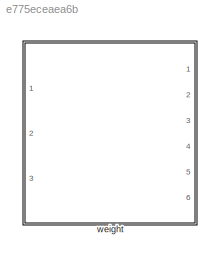
MODEL slx_e775eceaea6b
KIND library
CONFIG AbsTol = auto
CONFIG EnableMultiTasking = off
CONFIG FixedStep = auto
CONFIG MaxStep = auto
CONFIG MinStep = auto
CONFIG RelTol = 1e-3
CONFIG SampleTimeConstraint = Unconstrained
CONFIG SolverName = VariableStepAuto
CONFIG StartTime = 0.0
CONFIG StopTime = 10.0
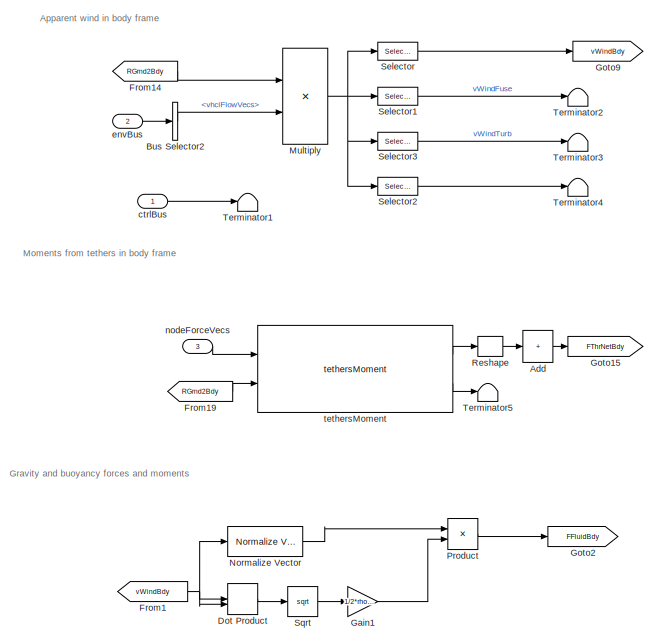
[diagram: weight - part 1/6, top center region]
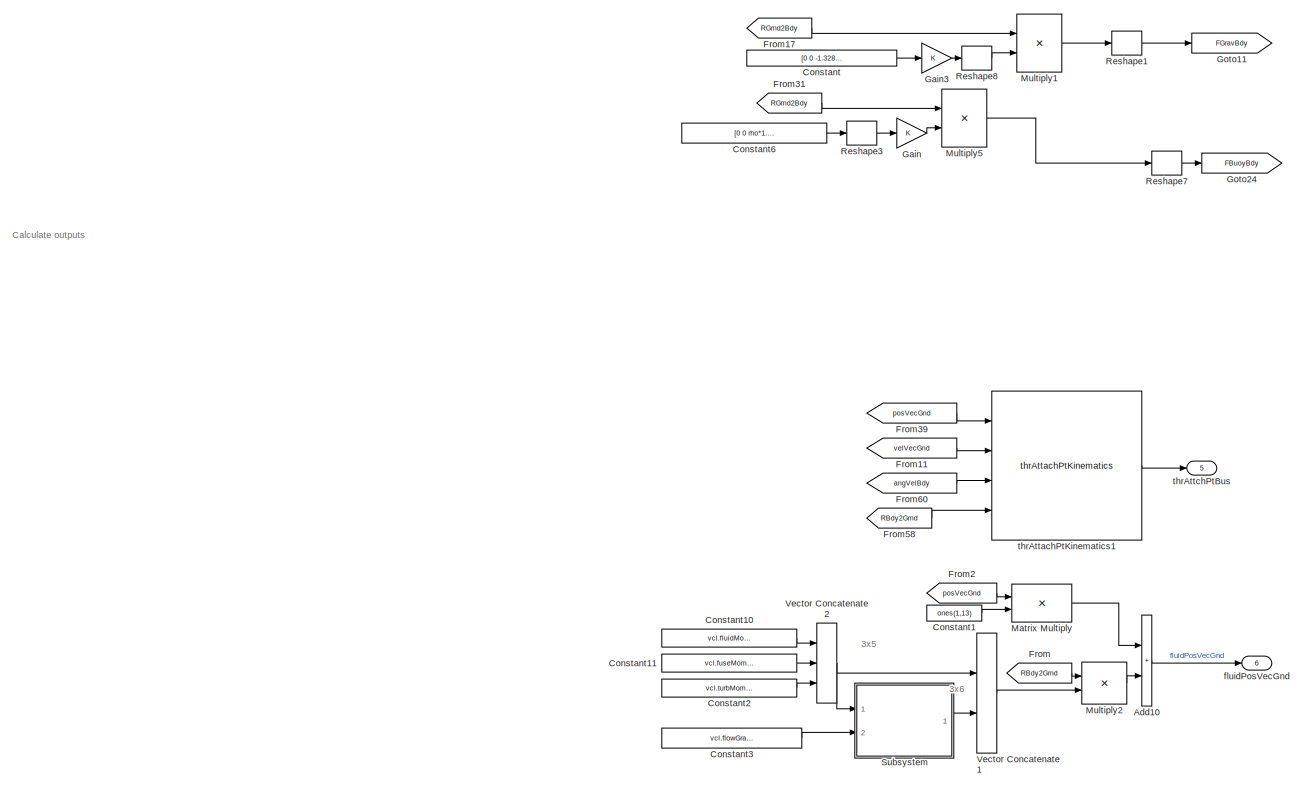
[diagram: weight - part 2/6, middle left region]
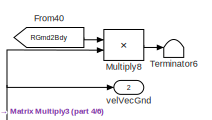
[diagram: weight - part 3/6, middle right region]
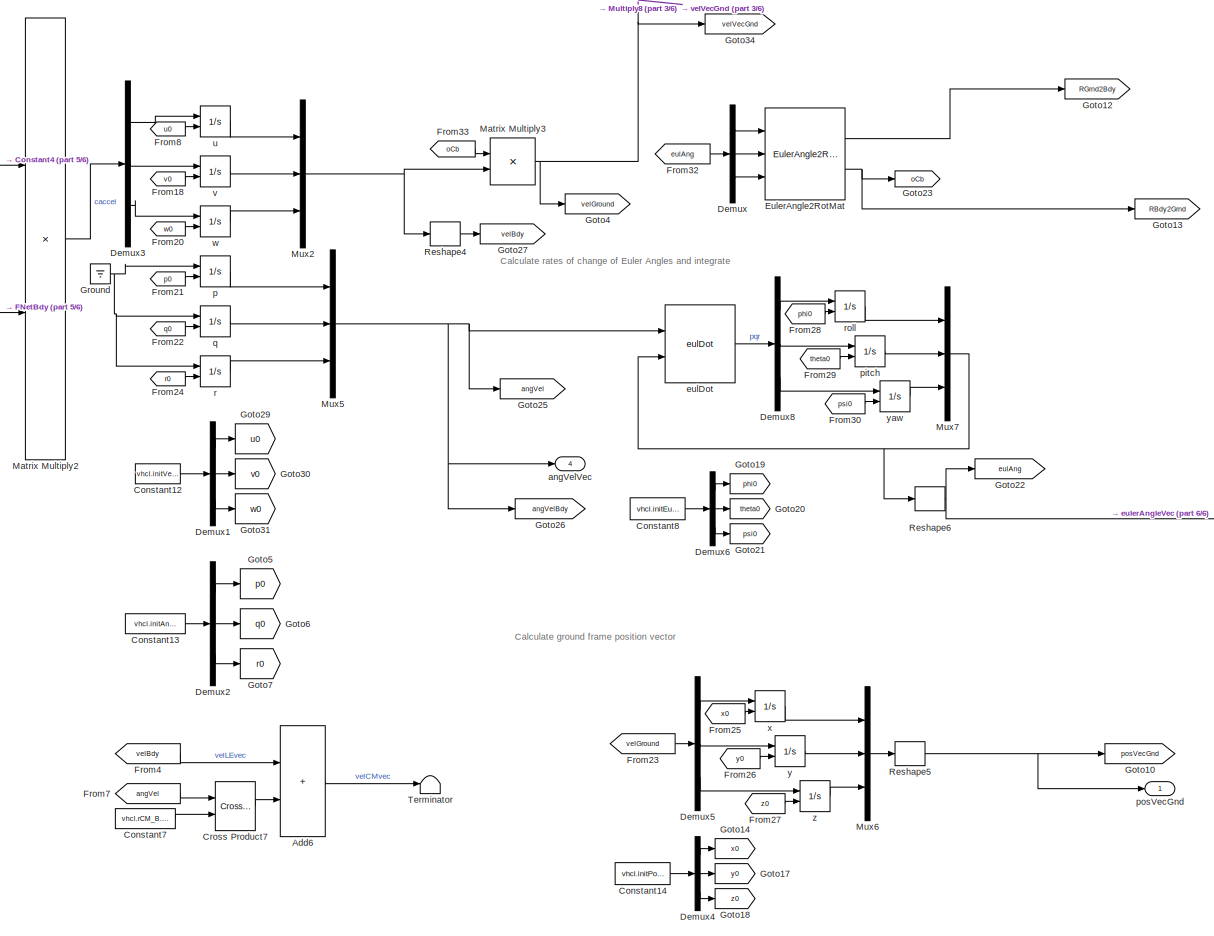
[diagram: weight - part 4/6, bottom right region]
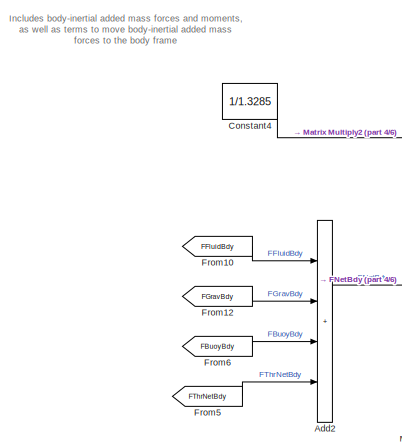
[diagram: weight - part 5/6, bottom center region]
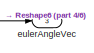
[diagram: weight - part 6/6, bottom right region]
BLOCK [SubSystem] weight
  Ports = [3, 6]
  RequestExecContextInheritance = off
  VariantControl = strcmpi(VEHICLE,'vehicleManta2Rot')
BLOCK [Sum] weight/Add
  CollapseDim = 2
  CollapseMode = Specified dimension
  IconShape = rectangular
  Inputs = +
  Ports = [1, 1]
BLOCK [Sum] weight/Add10
  IconShape = rectangular
  Ports = [2, 1]
BLOCK [Sum] weight/Add2
  IconShape = rectangular
  Inputs = ++++
  Ports = [4, 1]
BLOCK [Sum] weight/Add6
  IconShape = rectangular
  Ports = [2, 1]
BLOCK [BusSelector] weight/Bus Selector2
  OutputSignals = vhclFlowVecs
  Ports = [1, 1]
BLOCK [Constant] weight/Constant
  Value = [0 0 -1.3285*grav]
BLOCK [Constant] weight/Constant1
  Value = ones(1,13)
  VectorParams1D = off
BLOCK [Constant] weight/Constant10
  Value = vcl.fluidMomentArms.Value
BLOCK [Constant] weight/Constant11
  Value = vcl.fuseMomentArm.Value
BLOCK [Constant] weight/Constant12
  Value = vhcl.initVelVecBdy.Value
BLOCK [Constant] weight/Constant13
  Value = vhcl.initAngVelVec.Value
BLOCK [Constant] weight/Constant14
  Value = vhcl.initPosVecGnd.Value
BLOCK [Constant] weight/Constant2
  Value = vcl.turbMomentArms.Value
BLOCK [Constant] weight/Constant3
  Value = vcl.flowGradientDist.Value
BLOCK [Constant] weight/Constant4
  Value = 1/1.3285
  VectorParams1D = off
BLOCK [Constant] weight/Constant6
  Value = [0 0 rho*1.6924e-04*grav]'
BLOCK [Constant] weight/Constant7
  Value = vhcl.rCM_B.Value
BLOCK [Constant] weight/Constant8
  Value = vhcl.initEulAng.Value
BLOCK [Reference] weight/Cross Product7  REF=vrlib/Utilities/Cross Product
  Ports = [2, 1]
  SourceBlock = vrlib/Utilities/Cross Product
  SourceProductBaseCode = SL
  SourceType = Cross Product
BLOCK [Demux] weight/Demux
  Outputs = 3
  Ports = [1, 3]
BLOCK [Demux] weight/Demux1
  Outputs = 3
  Ports = [1, 3]
BLOCK [Demux] weight/Demux2
  Outputs = 3
  Ports = [1, 3]
BLOCK [Demux] weight/Demux3
  Outputs = 3
  Ports = [1, 3]
BLOCK [Demux] weight/Demux4
  Outputs = 3
  Ports = [1, 3]
BLOCK [Demux] weight/Demux5
  Outputs = 3
  Ports = [1, 3]
BLOCK [Demux] weight/Demux6
  Outputs = 3
  Ports = [1, 3]
BLOCK [Demux] weight/Demux8
  Outputs = 3
  Ports = [1, 3]
BLOCK [DotProduct] weight/Dot Product
  OutDataTypeStr = Inherit: Inherit via internal rule
BLOCK [Reference] weight/EulerAngle2RotMat  REF=eulAng2RotMat_ul/EulerAngle2RotMat
  Ports = [3, 2]
  SourceBlock = eulAng2RotMat_ul/EulerAngle2RotMat
  SourceType = SubSystem
BLOCK [From] weight/From
  GotoTag = RBdy2Grnd
BLOCK [From] weight/From1
  GotoTag = vWindBdy
BLOCK [From] weight/From10
  GotoTag = FFluidBdy
BLOCK [From] weight/From11
  GotoTag = velVecGnd
BLOCK [From] weight/From12
  GotoTag = FGravBdy
BLOCK [From] weight/From14
  GotoTag = RGrnd2Bdy
BLOCK [From] weight/From17
  GotoTag = RGrnd2Bdy
BLOCK [From] weight/From18
  GotoTag = v0
BLOCK [From] weight/From19
  GotoTag = RGrnd2Bdy
BLOCK [From] weight/From2
  GotoTag = posVecGnd
BLOCK [From] weight/From20
  GotoTag = w0
BLOCK [From] weight/From21
  GotoTag = p0
BLOCK [From] weight/From22
  GotoTag = q0
BLOCK [From] weight/From23
  GotoTag = velGround
BLOCK [From] weight/From24
  GotoTag = r0
BLOCK [From] weight/From25
  GotoTag = x0
BLOCK [From] weight/From26
  GotoTag = y0
BLOCK [From] weight/From27
  GotoTag = z0
BLOCK [From] weight/From28
  GotoTag = phi0
BLOCK [From] weight/From29
  GotoTag = theta0
BLOCK [From] weight/From30
  GotoTag = psi0
BLOCK [From] weight/From31
  GotoTag = RGrnd2Bdy
BLOCK [From] weight/From32
  GotoTag = eulAng
BLOCK [From] weight/From33
  GotoTag = oCb
BLOCK [From] weight/From39
  GotoTag = posVecGnd
BLOCK [From] weight/From4
  GotoTag = velBdy
BLOCK [From] weight/From40
  GotoTag = RGrnd2Bdy
BLOCK [From] weight/From5
  GotoTag = FThrNetBdy
BLOCK [From] weight/From58
  GotoTag = RBdy2Grnd
BLOCK [From] weight/From6
  GotoTag = FBuoyBdy
BLOCK [From] weight/From60
  GotoTag = angVelBdy
BLOCK [From] weight/From7
  GotoTag = angVel
BLOCK [From] weight/From8
  GotoTag = u0
BLOCK [Gain] weight/Gain
BLOCK [Gain] weight/Gain1
  Gain = 1/2*rho*0.0057*1
BLOCK [Gain] weight/Gain3
BLOCK [Goto] weight/Goto10
  GotoTag = posVecGnd
BLOCK [Goto] weight/Goto11
  GotoTag = FGravBdy
BLOCK [Goto] weight/Goto12
  GotoTag = RGrnd2Bdy
BLOCK [Goto] weight/Goto13
  GotoTag = RBdy2Grnd
BLOCK [Goto] weight/Goto14
  GotoTag = x0
BLOCK [Goto] weight/Goto15
  GotoTag = FThrNetBdy
BLOCK [Goto] weight/Goto17
  GotoTag = y0
BLOCK [Goto] weight/Goto18
  GotoTag = z0
BLOCK [Goto] weight/Goto19
  GotoTag = phi0
BLOCK [Goto] weight/Goto2
  GotoTag = FFluidBdy
BLOCK [Goto] weight/Goto20
  GotoTag = theta0
BLOCK [Goto] weight/Goto21
  GotoTag = psi0
BLOCK [Goto] weight/Goto22
  GotoTag = eulAng
BLOCK [Goto] weight/Goto23
  GotoTag = oCb
BLOCK [Goto] weight/Goto24
  GotoTag = FBuoyBdy
BLOCK [Goto] weight/Goto25
  GotoTag = angVel
BLOCK [Goto] weight/Goto26
  GotoTag = angVelBdy
BLOCK [Goto] weight/Goto27
  GotoTag = velBdy
BLOCK [Goto] weight/Goto29
  GotoTag = u0
BLOCK [Goto] weight/Goto30
  GotoTag = v0
BLOCK [Goto] weight/Goto31
  GotoTag = w0
BLOCK [Goto] weight/Goto34
  GotoTag = velVecGnd
BLOCK [Goto] weight/Goto4
  GotoTag = velGround
BLOCK [Goto] weight/Goto5
  GotoTag = p0
BLOCK [Goto] weight/Goto6
  GotoTag = q0
BLOCK [Goto] weight/Goto7
  GotoTag = r0
BLOCK [Goto] weight/Goto9
  GotoTag = vWindBdy
BLOCK [Ground] weight/Ground
BLOCK [Product] weight/Matrix Multiply
  Multiplication = Matrix(*)
  Ports = [2, 1]
BLOCK [Product] weight/Matrix Multiply2
  Ports = [2, 1]
BLOCK [Product] weight/Matrix Multiply3
  Multiplication = Matrix(*)
  Ports = [2, 1]
BLOCK [Product] weight/Multiply
  Multiplication = Matrix(*)
  Ports = [2, 1]
BLOCK [Product] weight/Multiply1
  Multiplication = Matrix(*)
  Ports = [2, 1]
BLOCK [Product] weight/Multiply2
  Multiplication = Matrix(*)
  Ports = [2, 1]
BLOCK [Product] weight/Multiply5
  Multiplication = Matrix(*)
  Ports = [2, 1]
BLOCK [Product] weight/Multiply8
  Multiplication = Matrix(*)
  Ports = [2, 1]
BLOCK [Mux] weight/Mux2
  DisplayOption = bar
  Inputs = 3
  Ports = [3, 1]
BLOCK [Mux] weight/Mux5
  DisplayOption = bar
  Inputs = 3
  Ports = [3, 1]
BLOCK [Mux] weight/Mux6
  DisplayOption = bar
  Inputs = 3
  Ports = [3, 1]
BLOCK [Mux] weight/Mux7
  DisplayOption = bar
  Inputs = 3
  Ports = [3, 1]
BLOCK [Reference] weight/Normalize Vector  REF=vrlib/Utilities/Normalize Vector
  Ports = [1, 1]
  SourceBlock = vrlib/Utilities/Normalize Vector
  SourceProductBaseCode = SL
  SourceType = Normalize Vector
BLOCK [Product] weight/Product
  Ports = [2, 1]
BLOCK [Reshape] weight/Reshape
  OutputDimensionality = Customize
  OutputDimensions = [3 vcl.numTethers.Value]
  Ports = [1, 1]
BLOCK [Reshape] weight/Reshape1
  OutputDimensionality = Column vector (2-D)
  Ports = [1, 1]
BLOCK [Reshape] weight/Reshape3
  OutputDimensionality = Column vector (2-D)
  Ports = [1, 1]
BLOCK [Reshape] weight/Reshape4
  OutputDimensionality = Column vector (2-D)
  Ports = [1, 1]
BLOCK [Reshape] weight/Reshape5
  OutputDimensionality = Column vector (2-D)
  Ports = [1, 1]
BLOCK [Reshape] weight/Reshape6
  OutputDimensionality = Column vector (2-D)
  Ports = [1, 1]
BLOCK [Reshape] weight/Reshape7
  OutputDimensionality = Column vector (2-D)
  Ports = [1, 1]
BLOCK [Reshape] weight/Reshape8
  OutputDimensionality = Column vector (2-D)
  Ports = [1, 1]
BLOCK [Selector] weight/Selector
  IndexOptions = Select all,Index vector (dialog)
  Indices = [1 3],1
  InputPortWidth = 3
  NumberOfDimensions = 2
  OutputSizes = 1,1
  Ports = [1, 1]
BLOCK [Selector] weight/Selector1
  IndexOptions = Select all,Index vector (dialog)
  Indices = [1 3],5
  InputPortWidth = 3
  NumberOfDimensions = 2
  OutputSizes = 1,1
  Ports = [1, 1]
BLOCK [Selector] weight/Selector2
  IndexOptions = Select all,Index vector (dialog)
  Indices = [1 3],8:13
  InputPortWidth = 3
  NumberOfDimensions = 2
  OutputSizes = 1,1
  Ports = [1, 1]
BLOCK [Selector] weight/Selector3
  IndexOptions = Select all,Index vector (dialog)
  Indices = [1 3],6:7
  InputPortWidth = 3
  NumberOfDimensions = 2
  OutputSizes = 1,1
  Ports = [1, 1]
BLOCK [Sqrt] weight/Sqrt
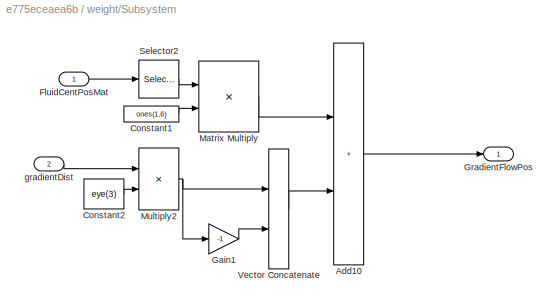
BLOCK [SubSystem] weight/Subsystem
  Ports = [2, 1]
  RequestExecContextInheritance = off
BLOCK [Sum] weight/Subsystem/Add10
  IconShape = rectangular
  Ports = [2, 1]
BLOCK [Constant] weight/Subsystem/Constant1
  Value = ones(1,6)
  VectorParams1D = off
BLOCK [Constant] weight/Subsystem/Constant2
  Value = eye(3)
BLOCK [Inport] weight/Subsystem/FluidCentPosMat
BLOCK [Gain] weight/Subsystem/Gain1
  Gain = -1
BLOCK [Outport] weight/Subsystem/GradientFlowPos
  VectorParamsAs1DForOutWhenUnconnected = off
BLOCK [Product] weight/Subsystem/Matrix Multiply
  Multiplication = Matrix(*)
  Ports = [2, 1]
BLOCK [Product] weight/Subsystem/Multiply2
  Ports = [2, 1]
BLOCK [Selector] weight/Subsystem/Selector2
  IndexOptions = Select all,Index vector (dialog)
  Indices = [1 3],5
  InputPortWidth = 3
  NumberOfDimensions = 2
  OutputSizes = 1,1
  Ports = [1, 1]
BLOCK [Concatenate] weight/Subsystem/Vector Concatenate
  ConcatenateDimension = 2
  Mode = Multidimensional array
  Ports = [2, 1]
BLOCK [Inport] weight/Subsystem/gradientDist
  Port = 2
BLOCK [Terminator] weight/Terminator
BLOCK [Terminator] weight/Terminator1
BLOCK [Terminator] weight/Terminator2
BLOCK [Terminator] weight/Terminator3
BLOCK [Terminator] weight/Terminator4
BLOCK [Terminator] weight/Terminator5
BLOCK [Terminator] weight/Terminator6
BLOCK [Concatenate] weight/Vector Concatenate1
  ConcatenateDimension = 2
  Mode = Multidimensional array
  Ports = [2, 1]
BLOCK [Concatenate] weight/Vector Concatenate2
  ConcatenateDimension = 2
  Mode = Multidimensional array
  NumInputs = 3
  Ports = [3, 1]
BLOCK [Outport] weight/angVelVec
  Port = 4
  VectorParamsAs1DForOutWhenUnconnected = off
BLOCK [Inport] weight/ctrlBus
BLOCK [Inport] weight/envBus
  OutDataTypeStr = Bus: envBus
  Port = 2
BLOCK [Reference] weight/eulDot  REF=eulDot/eulDot
  Ports = [2, 1]
  SourceBlock = eulDot/eulDot
  SourceType = SubSystem
BLOCK [Outport] weight/eulerAngleVec
  Port = 3
  VectorParamsAs1DForOutWhenUnconnected = off
BLOCK [Outport] weight/fluidPosVecGnd
  Port = 6
  VectorParamsAs1DForOutWhenUnconnected = off
BLOCK [Inport] weight/nodeForceVecs
  Port = 3
BLOCK [Integrator] weight/p
  InitialConditionSource = external
  Ports = [2, 1]
BLOCK [Integrator] weight/pitch
  InitialConditionSource = external
  Ports = [2, 1]
BLOCK [Outport] weight/posVecGnd
  VectorParamsAs1DForOutWhenUnconnected = off
BLOCK [Integrator] weight/q
  InitialConditionSource = external
  Ports = [2, 1]
BLOCK [Integrator] weight/r
  InitialConditionSource = external
  Ports = [2, 1]
BLOCK [Integrator] weight/roll
  InitialConditionSource = external
  Ports = [2, 1]
BLOCK [Reference] weight/tethersMoment  REF=tethersMoment_cl/tethersMoment
  Ports = [2, 2]
  SourceBlock = tethersMoment_cl/tethersMoment
BLOCK [Reference] weight/thrAttachPtKinematics1  REF=thrAttachPtKinematics_ul/thrAttachPtKinematics
  Ports = [4, 1]
  SourceBlock = thrAttachPtKinematics_ul/thrAttachPtKinematics
BLOCK [Outport] weight/thrAttchPtBus
  Port = 5
  VectorParamsAs1DForOutWhenUnconnected = off
BLOCK [Integrator] weight/u
  InitialConditionSource = external
  Ports = [2, 1]
BLOCK [Integrator] weight/v
  InitialConditionSource = external
  Ports = [2, 1]
BLOCK [Outport] weight/velVecGnd
  Port = 2
  VectorParamsAs1DForOutWhenUnconnected = off
BLOCK [Integrator] weight/w
  InitialConditionSource = external
  Ports = [2, 1]
BLOCK [Integrator] weight/x
  InitialConditionSource = external
  Ports = [2, 1]
BLOCK [Integrator] weight/y
  InitialConditionSource = external
  Ports = [2, 1]
BLOCK [Integrator] weight/yaw
  InitialConditionSource = external
  Ports = [2, 1]
BLOCK [Integrator] weight/z
  InitialConditionSource = external
  Ports = [2, 1]
ANNOTATION weight: 3x5
ANNOTATION weight: 3x6
ANNOTATION weight: Includes body-inertial added mass forces and moments, as well as terms to move body-inertial added mass forces to the body frame
ANNOTATION weight: Apparent wind in body frame
ANNOTATION weight: Calculate ground frame position vector
ANNOTATION weight: Calculate outputs
ANNOTATION weight: Calculate rates of change of Euler Angles and integrate
ANNOTATION weight: Gravity and buoyancy forces and moments
ANNOTATION weight: Moments from tethers in body frame
LINE weight/Add10:1 -> weight/fluidPosVecGnd:1
LINE weight/Add2:1 -> weight/Matrix Multiply2:2
LINE weight/Add6:1 -> weight/Terminator:1
LINE weight/Add:1 -> weight/Goto15:1
LINE weight/Bus Selector2:1 -> weight/Multiply:2
LINE weight/Constant10:1 -> weight/Vector Concatenate2:1
LINE weight/Constant11:1 -> weight/Vector Concatenate2:2
LINE weight/Constant12:1 -> weight/Demux1:1
LINE weight/Constant13:1 -> weight/Demux2:1
LINE weight/Constant14:1 -> weight/Demux4:1
LINE weight/Constant1:1 -> weight/Matrix Multiply:2
LINE weight/Constant2:1 -> weight/Vector Concatenate2:3
LINE weight/Constant3:1 -> weight/Subsystem:2
LINE weight/Constant4:1 -> weight/Matrix Multiply2:1
LINE weight/Constant6:1 -> weight/Reshape3:1
LINE weight/Constant7:1 -> weight/Cross Product7:2
LINE weight/Constant8:1 -> weight/Demux6:1
LINE weight/Constant:1 -> weight/Gain3:1
LINE weight/Cross Product7:1 -> weight/Add6:2
LINE weight/Demux1:1 -> weight/Goto29:1
LINE weight/Demux1:2 -> weight/Goto30:1
LINE weight/Demux1:3 -> weight/Goto31:1
LINE weight/Demux2:1 -> weight/Goto5:1
LINE weight/Demux2:2 -> weight/Goto6:1
LINE weight/Demux2:3 -> weight/Goto7:1
LINE weight/Demux3:1 -> weight/u:1
LINE weight/Demux3:2 -> weight/v:1
LINE weight/Demux3:3 -> weight/w:1
LINE weight/Demux4:1 -> weight/Goto14:1
LINE weight/Demux4:2 -> weight/Goto17:1
LINE weight/Demux4:3 -> weight/Goto18:1
LINE weight/Demux5:1 -> weight/x:1
LINE weight/Demux5:2 -> weight/y:1
LINE weight/Demux5:3 -> weight/z:1
LINE weight/Demux6:1 -> weight/Goto19:1
LINE weight/Demux6:2 -> weight/Goto20:1
LINE weight/Demux6:3 -> weight/Goto21:1
LINE weight/Demux8:1 -> weight/roll:1
LINE weight/Demux8:2 -> weight/pitch:1
LINE weight/Demux8:3 -> weight/yaw:1
LINE weight/Demux:1 -> weight/EulerAngle2RotMat:1
LINE weight/Demux:2 -> weight/EulerAngle2RotMat:2
LINE weight/Demux:3 -> weight/EulerAngle2RotMat:3
LINE weight/Dot Product:1 -> weight/Sqrt:1
LINE weight/EulerAngle2RotMat:1 -> weight/Goto12:1
NET weight/EulerAngle2RotMat:2 -> weight/Goto13:1, weight/Goto23:1
LINE weight/From10:1 -> weight/Add2:1
LINE weight/From11:1 -> weight/thrAttachPtKinematics1:2
LINE weight/From12:1 -> weight/Add2:2
LINE weight/From14:1 -> weight/Multiply:1
LINE weight/From17:1 -> weight/Multiply1:1
LINE weight/From18:1 -> weight/v:2
LINE weight/From19:1 -> weight/tethersMoment:2
NET weight/From1:1 -> weight/Dot Product:1, weight/Dot Product:2, weight/Normalize Vector:1
LINE weight/From20:1 -> weight/w:2
LINE weight/From21:1 -> weight/p:2
LINE weight/From22:1 -> weight/q:2
LINE weight/From23:1 -> weight/Demux5:1
LINE weight/From24:1 -> weight/r:2
LINE weight/From25:1 -> weight/x:2
LINE weight/From26:1 -> weight/y:2
LINE weight/From27:1 -> weight/z:2
LINE weight/From28:1 -> weight/roll:2
LINE weight/From29:1 -> weight/pitch:2
LINE weight/From2:1 -> weight/Matrix Multiply:1
LINE weight/From30:1 -> weight/yaw:2
LINE weight/From31:1 -> weight/Multiply5:1
LINE weight/From32:1 -> weight/Demux:1
LINE weight/From33:1 -> weight/Matrix Multiply3:1
LINE weight/From39:1 -> weight/thrAttachPtKinematics1:1
LINE weight/From40:1 -> weight/Multiply8:1
LINE weight/From4:1 -> weight/Add6:1
LINE weight/From58:1 -> weight/thrAttachPtKinematics1:4
LINE weight/From5:1 -> weight/Add2:4
LINE weight/From60:1 -> weight/thrAttachPtKinematics1:3
LINE weight/From6:1 -> weight/Add2:3
LINE weight/From7:1 -> weight/Cross Product7:1
LINE weight/From8:1 -> weight/u:2
LINE weight/From:1 -> weight/Multiply2:1
LINE weight/Gain1:1 -> weight/Product:2
LINE weight/Gain3:1 -> weight/Reshape8:1
LINE weight/Gain:1 -> weight/Multiply5:2
NET weight/Ground:1 -> weight/p:1, weight/q:1, weight/r:1
LINE weight/Matrix Multiply2:1 -> weight/Demux3:1
NET weight/Matrix Multiply3:1 -> weight/Goto34:1, weight/Goto4:1, weight/Multiply8:2, weight/velVecGnd:1
LINE weight/Matrix Multiply:1 -> weight/Add10:1
LINE weight/Multiply1:1 -> weight/Reshape1:1
LINE weight/Multiply2:1 -> weight/Add10:2
LINE weight/Multiply5:1 -> weight/Reshape7:1
LINE weight/Multiply8:1 -> weight/Terminator6:1
NET weight/Multiply:1 -> weight/Selector1:1, weight/Selector2:1, weight/Selector3:1, weight/Selector:1
NET weight/Mux2:1 -> weight/Matrix Multiply3:2, weight/Reshape4:1
NET weight/Mux5:1 -> weight/Goto25:1, weight/Goto26:1, weight/angVelVec:1, weight/eulDot:1
LINE weight/Mux6:1 -> weight/Reshape5:1
NET weight/Mux7:1 -> weight/Reshape6:1, weight/eulDot:2
LINE weight/Normalize Vector:1 -> weight/Product:1
LINE weight/Product:1 -> weight/Goto2:1
LINE weight/Reshape1:1 -> weight/Goto11:1
LINE weight/Reshape3:1 -> weight/Gain:1
LINE weight/Reshape4:1 -> weight/Goto27:1
NET weight/Reshape5:1 -> weight/Goto10:1, weight/posVecGnd:1
NET weight/Reshape6:1 -> weight/Goto22:1, weight/eulerAngleVec:1
LINE weight/Reshape7:1 -> weight/Goto24:1
LINE weight/Reshape8:1 -> weight/Multiply1:2
LINE weight/Reshape:1 -> weight/Add:1
LINE weight/Selector1:1 -> weight/Terminator2:1
LINE weight/Selector2:1 -> weight/Terminator4:1
LINE weight/Selector3:1 -> weight/Terminator3:1
LINE weight/Selector:1 -> weight/Goto9:1
LINE weight/Sqrt:1 -> weight/Gain1:1
LINE weight/Subsystem/Add10:1 -> weight/Subsystem/GradientFlowPos:1
LINE weight/Subsystem/Constant1:1 -> weight/Subsystem/Matrix Multiply:2
LINE weight/Subsystem/Constant2:1 -> weight/Subsystem/Multiply2:2
LINE weight/Subsystem/FluidCentPosMat:1 -> weight/Subsystem/Selector2:1
LINE weight/Subsystem/Gain1:1 -> weight/Subsystem/Vector Concatenate:2
LINE weight/Subsystem/Matrix Multiply:1 -> weight/Subsystem/Add10:1
NET weight/Subsystem/Multiply2:1 -> weight/Subsystem/Gain1:1, weight/Subsystem/Vector Concatenate:1
LINE weight/Subsystem/Selector2:1 -> weight/Subsystem/Matrix Multiply:1
LINE weight/Subsystem/Vector Concatenate:1 -> weight/Subsystem/Add10:2
LINE weight/Subsystem/gradientDist:1 -> weight/Subsystem/Multiply2:1
LINE weight/Subsystem:1 -> weight/Vector Concatenate1:2
LINE weight/Vector Concatenate1:1 -> weight/Multiply2:2
NET weight/Vector Concatenate2:1 -> weight/Subsystem:1, weight/Vector Concatenate1:1
LINE weight/ctrlBus:1 -> weight/Terminator1:1
LINE weight/envBus:1 -> weight/Bus Selector2:1
LINE weight/eulDot:1 -> weight/Demux8:1
LINE weight/nodeForceVecs:1 -> weight/tethersMoment:1
LINE weight/p:1 -> weight/Mux5:1
LINE weight/pitch:1 -> weight/Mux7:2
LINE weight/q:1 -> weight/Mux5:2
LINE weight/r:1 -> weight/Mux5:3
LINE weight/roll:1 -> weight/Mux7:1
LINE weight/tethersMoment:1 -> weight/Reshape:1
LINE weight/tethersMoment:2 -> weight/Terminator5:1
LINE weight/thrAttachPtKinematics1:1 -> weight/thrAttchPtBus:1
LINE weight/u:1 -> weight/Mux2:1
LINE weight/v:1 -> weight/Mux2:2
LINE weight/w:1 -> weight/Mux2:3
LINE weight/x:1 -> weight/Mux6:1
LINE weight/y:1 -> weight/Mux6:2
LINE weight/yaw:1 -> weight/Mux7:3
LINE weight/z:1 -> weight/Mux6:3
note: NET lines group one-source signal fan-out (src -> all destinations, sorted); 1:1 wires keep LINE
